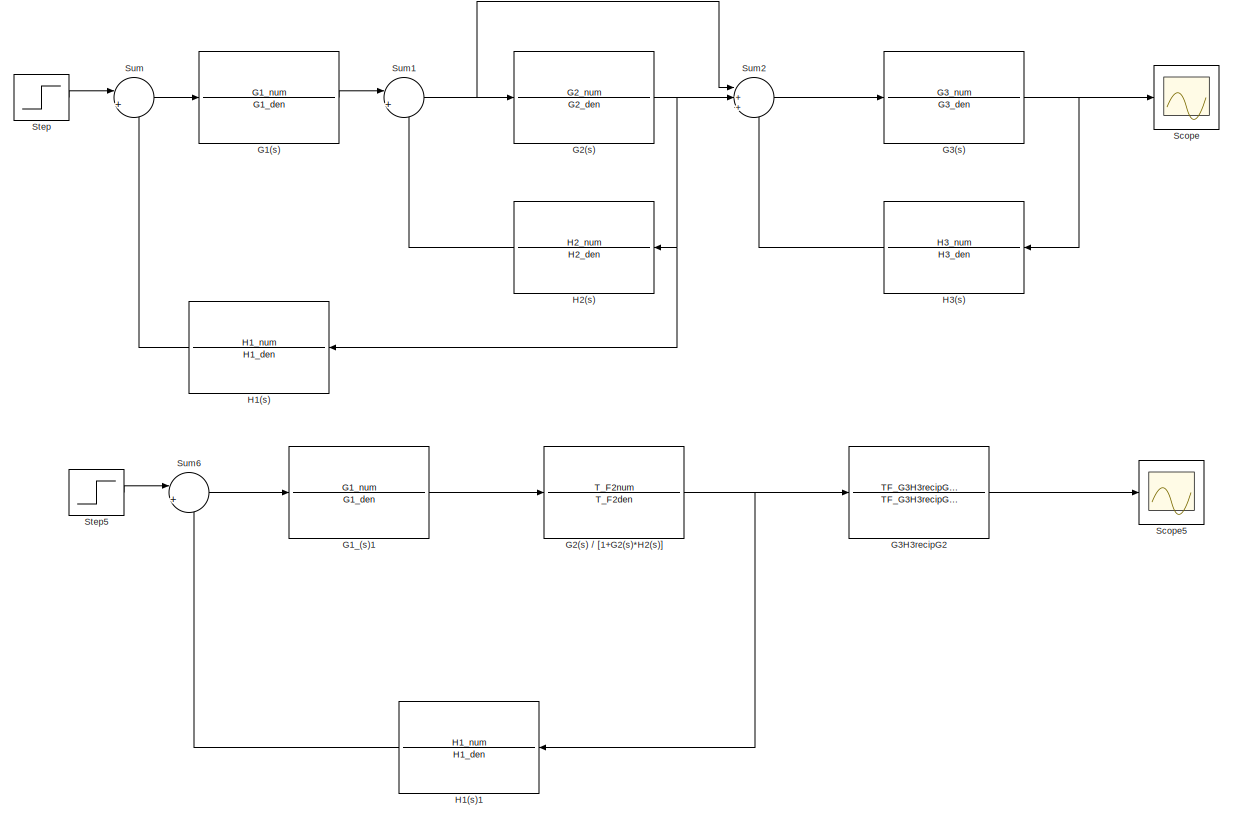
[diagram: root canvas - part 1/2, full width, top band]
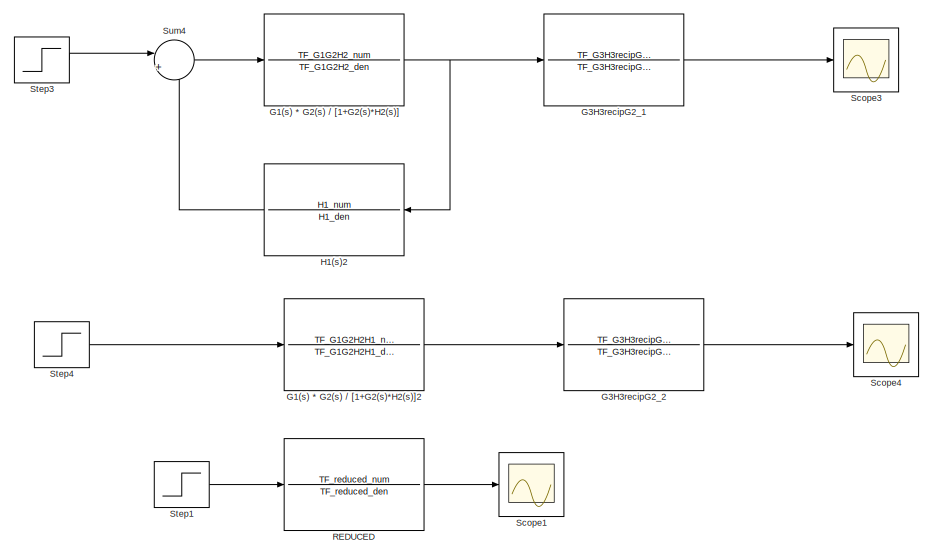
[diagram: root canvas - part 2/2, full width, bottom band]
MODEL slx_50170b9eb0ed
KIND model
CONFIG AbsTol = auto
CONFIG EnableMultiTasking = off
CONFIG FixedStep = auto
CONFIG MaxStep = auto
CONFIG MinStep = auto
CONFIG RelTol = 1e-3
CONFIG SampleTimeConstraint = Unconstrained
CONFIG Solver = VariableStepAuto
CONFIG SolverName = VariableStepAuto
CONFIG StartTime = 0.0
CONFIG StopTime = 20
BLOCK [TransferFcn] G1(s)
  Denominator = G1_den
  Numerator = G1_num
BLOCK [TransferFcn] G1(s) * G2(s) // [1+G2(s)*H2(s)]
  Denominator = TF_G1G2H2_den
  Numerator = TF_G1G2H2_num
BLOCK [TransferFcn] G1(s) * G2(s) // [1+G2(s)*H2(s)]2
  Denominator = TF_G1G2H2H1_den
  Numerator = TF_G1G2H2H1_num
BLOCK [TransferFcn] G1_(s)1
  Denominator = G1_den
  Numerator = G1_num
BLOCK [TransferFcn] G2(s)
  Denominator = G2_den
  Numerator = G2_num
BLOCK [TransferFcn] G2(s) // [1+G2(s)*H2(s)]
  Denominator = T_F2den
  Numerator = T_F2num
BLOCK [TransferFcn] G3(s)
  Denominator = G3_den
  Numerator = G3_num
BLOCK [TransferFcn] G3H3recipG2
  Denominator = TF_G3H3recipG2_den
  Numerator = TF_G3H3recipG2_num
BLOCK [TransferFcn] G3H3recipG2_1
  Denominator = TF_G3H3recipG2_den
  Numerator = TF_G3H3recipG2_num
BLOCK [TransferFcn] G3H3recipG2_2
  Denominator = TF_G3H3recipG2_den
  Numerator = TF_G3H3recipG2_num
BLOCK [TransferFcn] H1(s)
  Denominator = H1_den
  Numerator = H1_num
BLOCK [TransferFcn] H1(s)1
  Denominator = H1_den
  Numerator = H1_num
BLOCK [TransferFcn] H1(s)2
  Denominator = H1_den
  Numerator = H1_num
BLOCK [TransferFcn] H2(s)
  Denominator = H2_den
  Numerator = H2_num
BLOCK [TransferFcn] H3(s)
  Denominator = H3_den
  Numerator = H3_num
BLOCK [TransferFcn] REDUCED
  Denominator = TF_reduced_den
  Numerator = TF_reduced_num
BLOCK [Scope] Scope
  Floating = off
  NumInputPorts = 1
  Ports = [1]
  ScopeSpecificationString = Simulink.scopes.TimeScopeBlockCfg('CurrentConfiguration', extmgr.ConfigurationSet(extmgr.Configuration('Core','General UI',true),extmgr.Configuration('Core','Source UI',true),extmgr.Configuration('Sources','WiredSimulink',true),extmgr.Configuration('Visuals','Time Domain',true,'SerializedDisplays',{struct('MinYLimReal','-592196461.50845','MaxYLimReal','65799607.719','YLabelReal','','MinYLimMag',' ...<+1436ch>
BLOCK [Scope] Scope1
  Floating = off
  NumInputPorts = 1
  Ports = [1]
  ScopeSpecificationString = Simulink.scopes.TimeScopeBlockCfg('CurrentConfiguration', extmgr.ConfigurationSet(extmgr.Configuration('Core','General UI',true),extmgr.Configuration('Core','Source UI',true),extmgr.Configuration('Sources','WiredSimulink',true,'DataLoggingVariableName','ScopeData1'),extmgr.Configuration('Visuals','Time Domain',true,'SerializedDisplays',{struct('MinYLimReal','-592196461.50845','MaxYLimReal','657996...<+1477ch>
BLOCK [Scope] Scope3
  Floating = off
  NumInputPorts = 1
  Ports = [1]
  ScopeSpecificationString = Simulink.scopes.TimeScopeBlockCfg('CurrentConfiguration', extmgr.ConfigurationSet(extmgr.Configuration('Core','General UI',true),extmgr.Configuration('Core','Source UI',true),extmgr.Configuration('Sources','WiredSimulink',true,'DataLoggingVariableName','ScopeData2'),extmgr.Configuration('Visuals','Time Domain',true,'SerializedDisplays',{struct('MinYLimReal','-592196461.50845','MaxYLimReal','657996...<+1506ch>
BLOCK [Scope] Scope4
  Floating = off
  NumInputPorts = 1
  Ports = [1]
  ScopeSpecificationString = Simulink.scopes.TimeScopeBlockCfg('CurrentConfiguration', extmgr.ConfigurationSet(extmgr.Configuration('Core','General UI',true),extmgr.Configuration('Core','Source UI',true),extmgr.Configuration('Sources','WiredSimulink',true,'DataLoggingVariableName','ScopeData3'),extmgr.Configuration('Visuals','Time Domain',true,'SerializedDisplays',{struct('MinYLimReal','-592196461.50845','MaxYLimReal','657996...<+1507ch>
BLOCK [Scope] Scope5
  Floating = off
  NumInputPorts = 1
  Ports = [1]
  ScopeSpecificationString = Simulink.scopes.TimeScopeBlockCfg('CurrentConfiguration', extmgr.ConfigurationSet(extmgr.Configuration('Core','General UI',true),extmgr.Configuration('Core','Source UI',true),extmgr.Configuration('Sources','WiredSimulink',true,'DataLoggingVariableName','ScopeData4'),extmgr.Configuration('Visuals','Time Domain',true,'SerializedDisplays',{struct('MinYLimReal','-592196461.50845','MaxYLimReal','657996...<+1507ch>
BLOCK [Step] Step
  SampleTime = 0
BLOCK [Step] Step1
  SampleTime = 0
BLOCK [Step] Step3
  SampleTime = 0
BLOCK [Step] Step4
  SampleTime = 0
BLOCK [Step] Step5
  SampleTime = 0
BLOCK [Sum] Sum
  IconShape = round
  InputSameDT = off
  Inputs = |+-
  OutDataTypeStr = Inherit: Inherit via internal rule
  Ports = [2, 1]
  SaturateOnIntegerOverflow = off
BLOCK [Sum] Sum1
  IconShape = round
  InputSameDT = off
  Inputs = |+-
  OutDataTypeStr = Inherit: Inherit via internal rule
  Ports = [2, 1]
  SaturateOnIntegerOverflow = off
BLOCK [Sum] Sum2
  IconShape = round
  InputSameDT = off
  Inputs = |++-
  OutDataTypeStr = Inherit: Inherit via internal rule
  Ports = [3, 1]
  SaturateOnIntegerOverflow = off
BLOCK [Sum] Sum4
  IconShape = round
  InputSameDT = off
  Inputs = |+-
  OutDataTypeStr = Inherit: Inherit via internal rule
  Ports = [2, 1]
  SaturateOnIntegerOverflow = off
BLOCK [Sum] Sum6
  IconShape = round
  InputSameDT = off
  Inputs = |+-
  OutDataTypeStr = Inherit: Inherit via internal rule
  Ports = [2, 1]
  SaturateOnIntegerOverflow = off
LINE G1(s) * G2(s) // [1+G2(s)*H2(s)]2:1 -> G3H3recipG2_2:1
NET G1(s) * G2(s) // [1+G2(s)*H2(s)]:1 -> G3H3recipG2_1:1, H1(s)2:1
LINE G1(s):1 -> Sum1:1
LINE G1_(s)1:1 -> G2(s) // [1+G2(s)*H2(s)]:1
NET G2(s) // [1+G2(s)*H2(s)]:1 -> G3H3recipG2:1, H1(s)1:1
NET G2(s):1 -> H1(s):1, H2(s):1, Sum2:2
NET G3(s):1 -> H3(s):1, Scope:1
LINE G3H3recipG2:1 -> Scope5:1
LINE G3H3recipG2_1:1 -> Scope3:1
LINE G3H3recipG2_2:1 -> Scope4:1
LINE H1(s)1:1 -> Sum6:2
LINE H1(s)2:1 -> Sum4:2
LINE H1(s):1 -> Sum:2
LINE H2(s):1 -> Sum1:2
LINE H3(s):1 -> Sum2:3
LINE REDUCED:1 -> Scope1:1
LINE Step1:1 -> REDUCED:1
LINE Step3:1 -> Sum4:1
LINE Step4:1 -> G1(s) * G2(s) // [1+G2(s)*H2(s)]2:1
LINE Step5:1 -> Sum6:1
LINE Step:1 -> Sum:1
NET Sum1:1 -> G2(s):1, Sum2:1
LINE Sum2:1 -> G3(s):1
LINE Sum4:1 -> G1(s) * G2(s) // [1+G2(s)*H2(s)]:1
LINE Sum6:1 -> G1_(s)1:1
LINE Sum:1 -> G1(s):1
note: NET lines group one-source signal fan-out (src -> all destinations, sorted); 1:1 wires keep LINE
